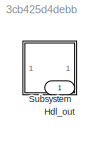
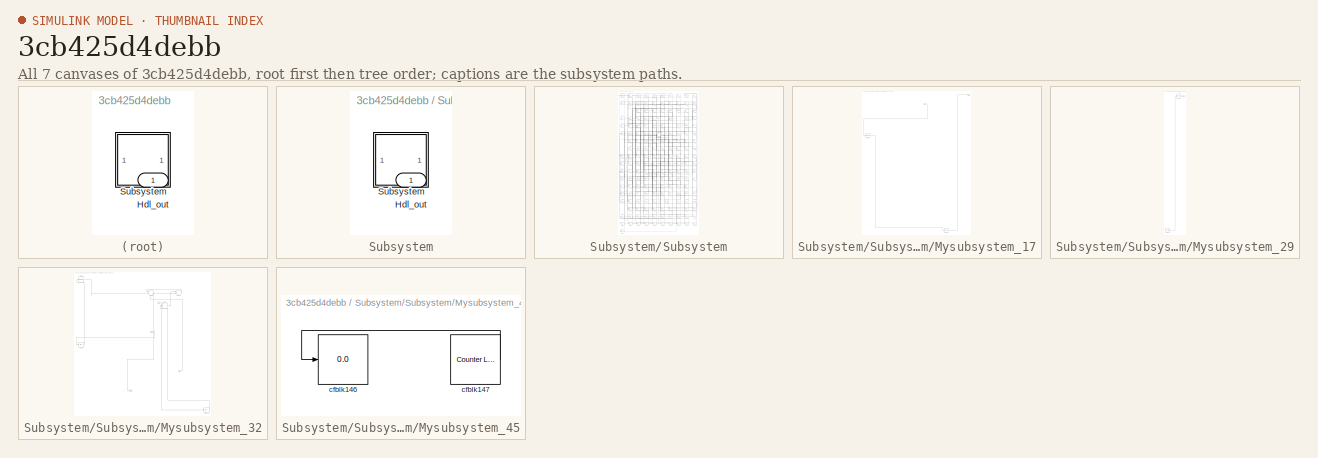
[diagram: thumbnail index - all 7 canvases of the model, root first then tree order]
MODEL slx_3cb425d4debb
KIND model
CONFIG AbsTol = auto
CONFIG EnableMultiTasking = off
CONFIG FixedStep = auto
CONFIG MaxStep = auto
CONFIG MinStep = auto
CONFIG RelTol = 1e-3
CONFIG SampleTimeConstraint = Unconstrained
CONFIG SolverName = VariableStepAuto
CONFIG StartTime = 0.0
CONFIG StopTime = 10.0
BLOCK [Outport] Hdl_out
  OutDataTypeStr = uint8
BLOCK [SubSystem] Subsystem
BLOCK [Outport] Subsystem/Hdl_out
  OutDataTypeStr = uint8
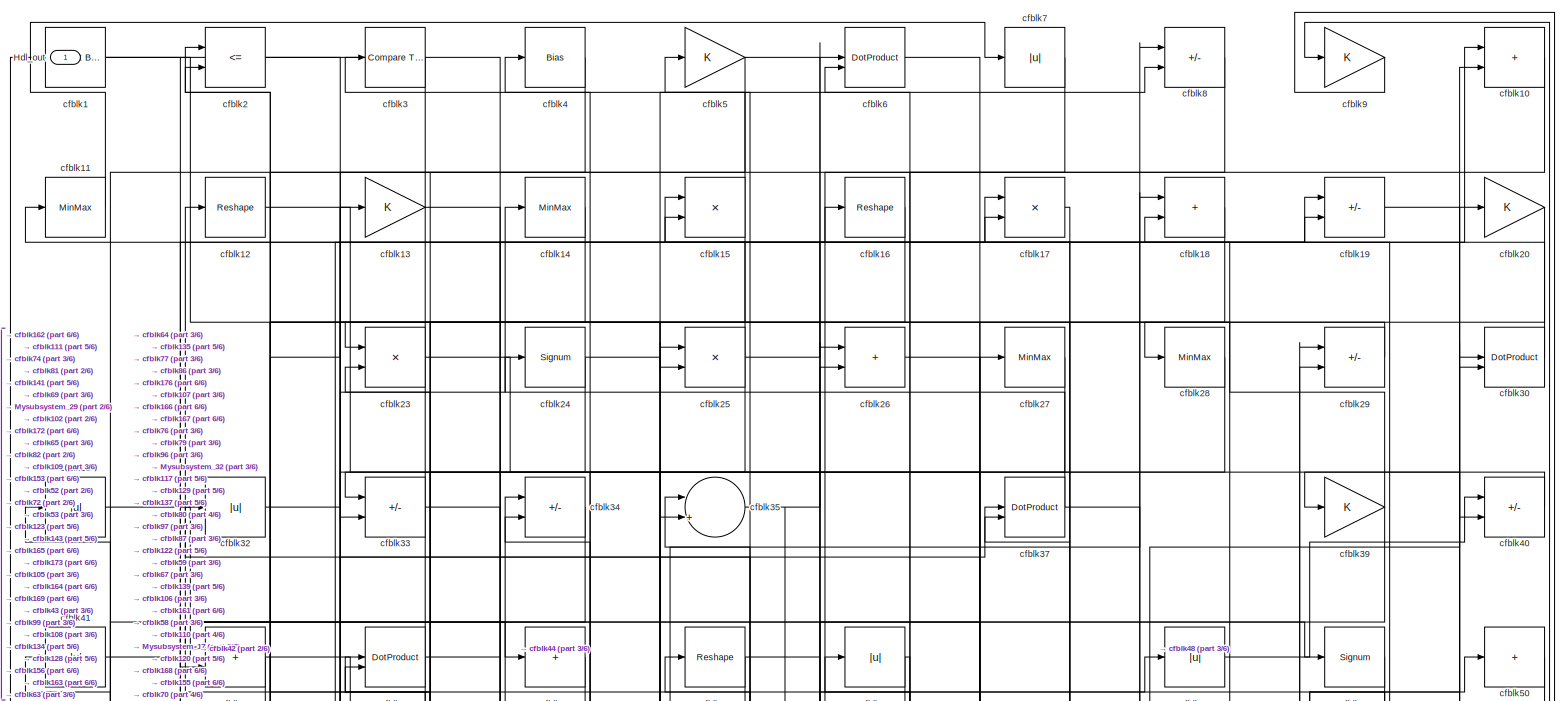
[diagram: Subsystem/Subsystem - part 1/6, full width, top band]
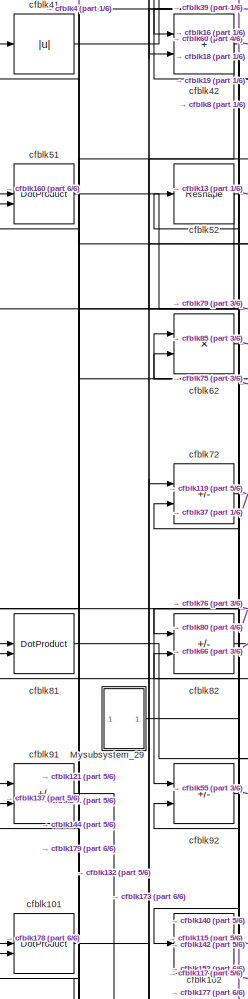
[diagram: Subsystem/Subsystem - part 2/6, middle left region]
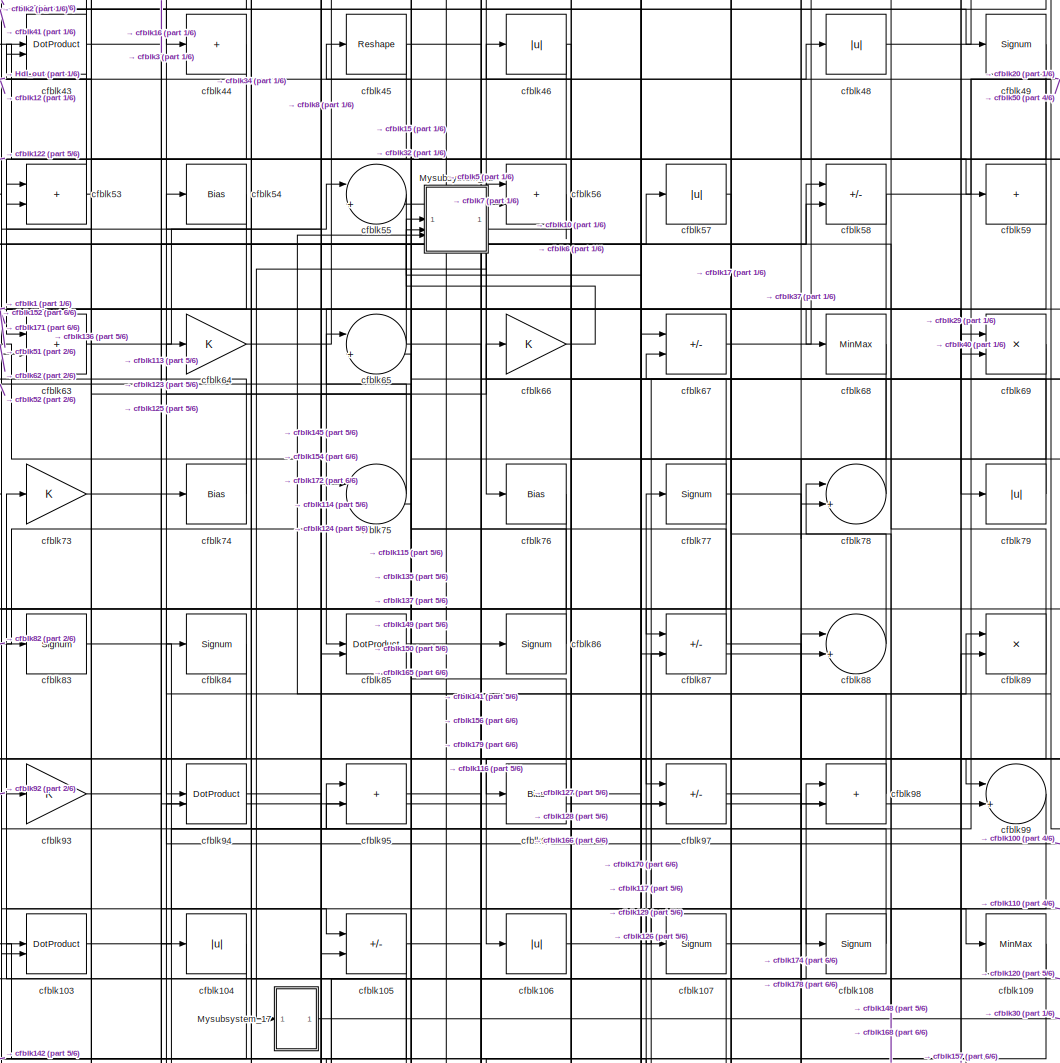
[diagram: Subsystem/Subsystem - part 3/6, central region]
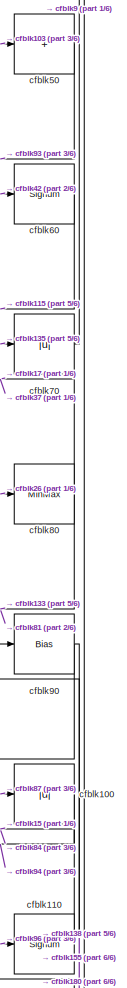
[diagram: Subsystem/Subsystem - part 4/6, middle right region]
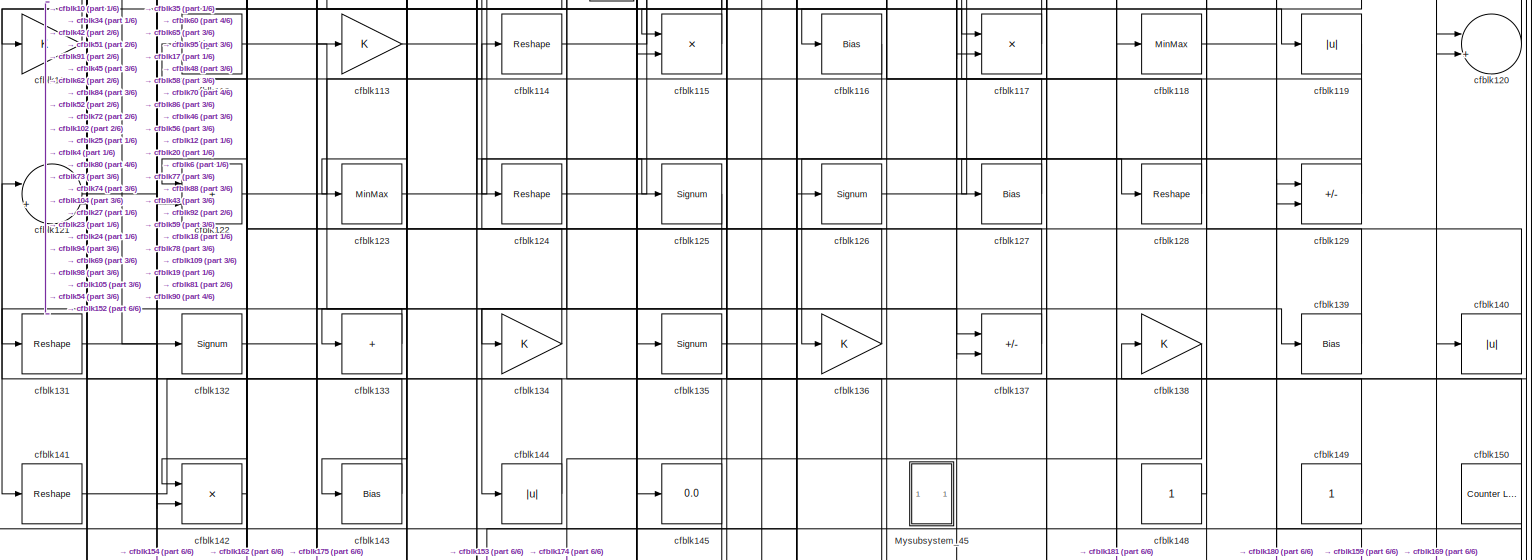
[diagram: Subsystem/Subsystem - part 5/6, full width, bottom band]
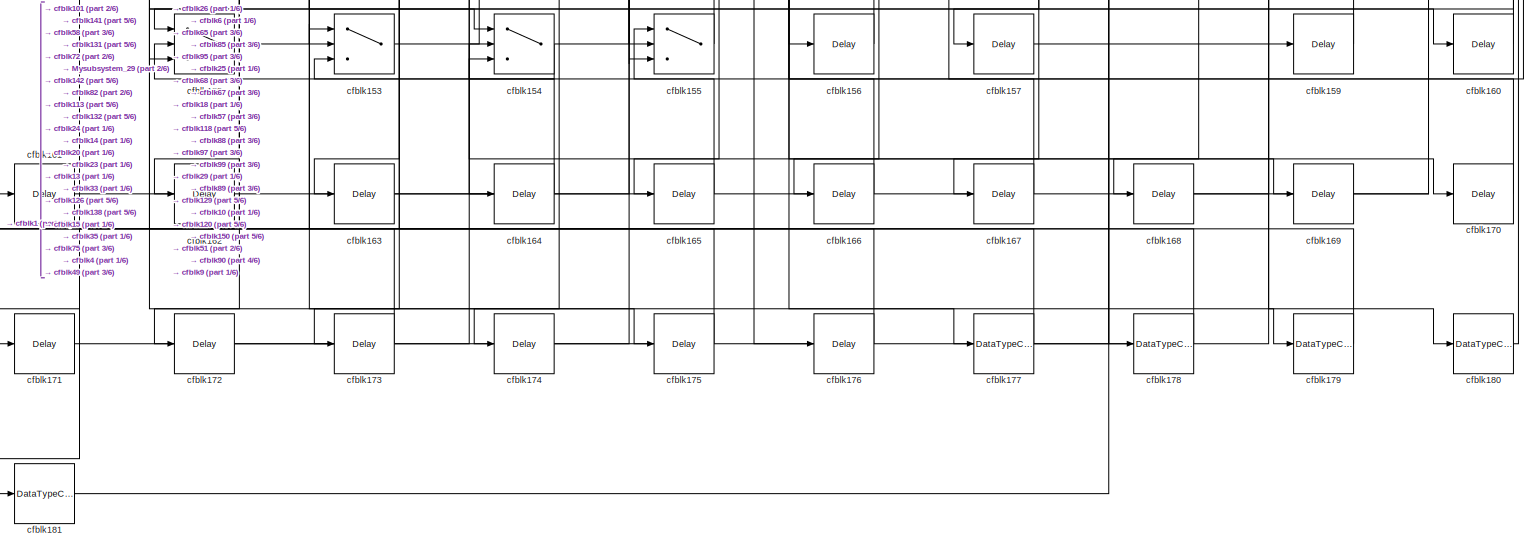
[diagram: Subsystem/Subsystem - part 6/6, full width, bottom band]
BLOCK [SubSystem] Subsystem/Subsystem
BLOCK [Outport] Subsystem/Subsystem/Hdl_out
  OutDataTypeStr = uint8
BLOCK [SubSystem] Subsystem/Subsystem/Mysubsystem_17
  RTWFcnName = Mysubsystem_17
  RTWFcnNameOpts = User specified
  RTWFileNameOpts = Use function name
  RTWSystemCode = Reusable function
  TreatAsAtomicUnit = on
BLOCK [Inport] Subsystem/Subsystem/Mysubsystem_17/In1
BLOCK [Outport] Subsystem/Subsystem/Mysubsystem_17/Out1
BLOCK [Delay] Subsystem/Subsystem/Mysubsystem_17/cfblk158
  InputPortMap = u0
  SampleTime = 1
BLOCK [MinMax] Subsystem/Subsystem/Mysubsystem_17/cfblk61
BLOCK [SubSystem] Subsystem/Subsystem/Mysubsystem_29
  RTWFcnName = Mysubsystem_29
  RTWFcnNameOpts = User specified
  RTWFileNameOpts = Use function name
  RTWSystemCode = Reusable function
  TreatAsAtomicUnit = on
BLOCK [Outport] Subsystem/Subsystem/Mysubsystem_29/Out1
BLOCK [Reference] Subsystem/Subsystem/Mysubsystem_29/cfblk151  REF=hdlsllib/Sources/Counter
Free-Running
  SourceBlock = hdlsllib/Sources/Counter\nFree-Running
  SourceType = Counter Free-Running
BLOCK [Reshape] Subsystem/Subsystem/Mysubsystem_29/cfblk22
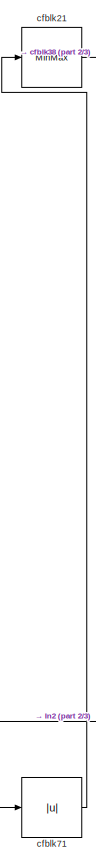
[diagram: Subsystem/Subsystem/Mysubsystem_32 - part 1/3, top left region]
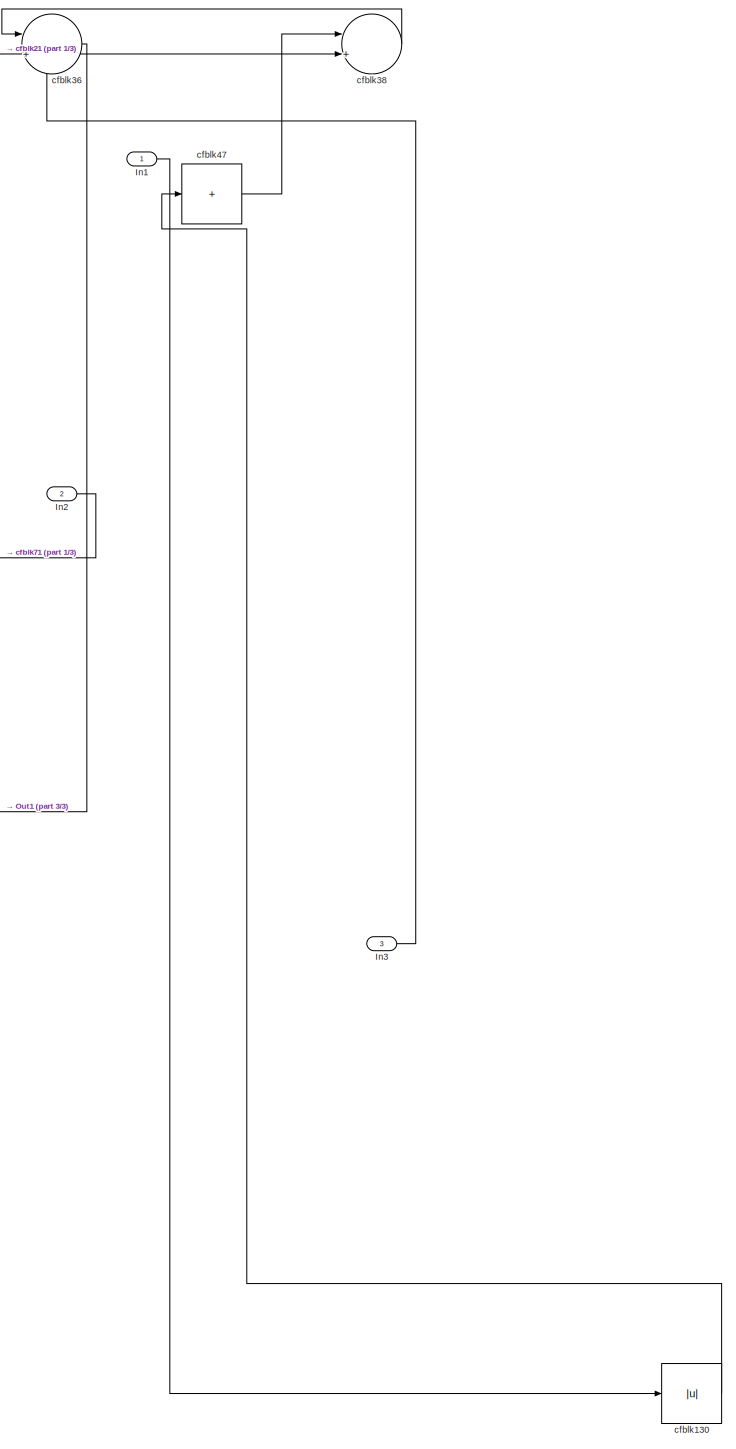
[diagram: Subsystem/Subsystem/Mysubsystem_32 - part 2/3, right side, full height]
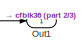
[diagram: Subsystem/Subsystem/Mysubsystem_32 - part 3/3, bottom center region]
BLOCK [SubSystem] Subsystem/Subsystem/Mysubsystem_32
  RTWFcnName = Mysubsystem_32
  RTWFcnNameOpts = User specified
  RTWFileNameOpts = Use function name
  RTWSystemCode = Reusable function
  TreatAsAtomicUnit = on
BLOCK [Inport] Subsystem/Subsystem/Mysubsystem_32/In1
BLOCK [Inport] Subsystem/Subsystem/Mysubsystem_32/In2
  Port = 2
BLOCK [Inport] Subsystem/Subsystem/Mysubsystem_32/In3
  Port = 3
BLOCK [Outport] Subsystem/Subsystem/Mysubsystem_32/Out1
BLOCK [Abs] Subsystem/Subsystem/Mysubsystem_32/cfblk130
  SaturateOnIntegerOverflow = off
BLOCK [MinMax] Subsystem/Subsystem/Mysubsystem_32/cfblk21
BLOCK [Sum] Subsystem/Subsystem/Mysubsystem_32/cfblk36
  Inputs = |++
BLOCK [Sum] Subsystem/Subsystem/Mysubsystem_32/cfblk38
  Inputs = |++
BLOCK [Sum] Subsystem/Subsystem/Mysubsystem_32/cfblk47
  IconShape = rectangular
  Inputs = +
BLOCK [Abs] Subsystem/Subsystem/Mysubsystem_32/cfblk71
  SaturateOnIntegerOverflow = off
BLOCK [SubSystem] Subsystem/Subsystem/Mysubsystem_45
  RTWFcnName = Mysubsystem_45
  RTWFcnNameOpts = User specified
  RTWFileNameOpts = Use function name
  RTWSystemCode = Reusable function
  TreatAsAtomicUnit = on
BLOCK [Display] Subsystem/Subsystem/Mysubsystem_45/cfblk146
  Decimation = 1
BLOCK [Reference] Subsystem/Subsystem/Mysubsystem_45/cfblk147  REF=hdlsllib/Sources/Counter
Limited
  SourceBlock = hdlsllib/Sources/Counter\nLimited
  SourceType = Counter Limited
BLOCK [Reference] Subsystem/Subsystem/cfblk1  REF=simulink/Logic and Bit
Operations/Extract Bits
  LibrarySourceBlock = hdlsllib/Logic and Bit\nOperations/Extract Bits
  SourceBlock = simulink/Logic and Bit\nOperations/Extract Bits
  SourceType = Extract Bits
BLOCK [Sum] Subsystem/Subsystem/cfblk10
  IconShape = rectangular
  OutDataTypeStr = uint8
BLOCK [Abs] Subsystem/Subsystem/cfblk100
  OutDataTypeStr = uint8
  SaturateOnIntegerOverflow = off
BLOCK [DotProduct] Subsystem/Subsystem/cfblk101
  OutDataTypeStr = uint8
BLOCK [Sum] Subsystem/Subsystem/cfblk102
  IconShape = rectangular
  Inputs = +
  OutDataTypeStr = uint8
BLOCK [DotProduct] Subsystem/Subsystem/cfblk103
  OutDataTypeStr = uint8
BLOCK [Abs] Subsystem/Subsystem/cfblk104
  OutDataTypeStr = uint8
  SaturateOnIntegerOverflow = off
BLOCK [Sum] Subsystem/Subsystem/cfblk105
  IconShape = rectangular
  Inputs = +-
  OutDataTypeStr = uint8
BLOCK [Abs] Subsystem/Subsystem/cfblk106
  OutDataTypeStr = uint8
  SaturateOnIntegerOverflow = off
BLOCK [Signum] Subsystem/Subsystem/cfblk107
BLOCK [Signum] Subsystem/Subsystem/cfblk108
BLOCK [MinMax] Subsystem/Subsystem/cfblk109
  OutDataTypeStr = uint8
BLOCK [MinMax] Subsystem/Subsystem/cfblk11
  OutDataTypeStr = uint8
BLOCK [Signum] Subsystem/Subsystem/cfblk110
BLOCK [Gain] Subsystem/Subsystem/cfblk111
  OutDataTypeStr = uint8
BLOCK [Signum] Subsystem/Subsystem/cfblk112
BLOCK [Gain] Subsystem/Subsystem/cfblk113
  OutDataTypeStr = uint8
BLOCK [Reshape] Subsystem/Subsystem/cfblk114
BLOCK [Product] Subsystem/Subsystem/cfblk115
  Inputs = */
  OutDataTypeStr = uint8
  RndMeth = Zero
  SaturateOnIntegerOverflow = on
BLOCK [Bias] Subsystem/Subsystem/cfblk116
  Bias = 0.0
  SaturateOnIntegerOverflow = off
BLOCK [Product] Subsystem/Subsystem/cfblk117
  Inputs = */
  OutDataTypeStr = uint8
  RndMeth = Zero
  SaturateOnIntegerOverflow = on
BLOCK [MinMax] Subsystem/Subsystem/cfblk118
  OutDataTypeStr = uint8
BLOCK [Abs] Subsystem/Subsystem/cfblk119
  OutDataTypeStr = uint8
  SaturateOnIntegerOverflow = off
BLOCK [Reshape] Subsystem/Subsystem/cfblk12
BLOCK [Sum] Subsystem/Subsystem/cfblk120
  Inputs = |++
  OutDataTypeStr = uint8
BLOCK [Sum] Subsystem/Subsystem/cfblk121
  Inputs = |++
  OutDataTypeStr = uint8
BLOCK [Sum] Subsystem/Subsystem/cfblk122
  IconShape = rectangular
  OutDataTypeStr = uint8
BLOCK [MinMax] Subsystem/Subsystem/cfblk123
  OutDataTypeStr = uint8
BLOCK [Reshape] Subsystem/Subsystem/cfblk124
BLOCK [Signum] Subsystem/Subsystem/cfblk125
BLOCK [Signum] Subsystem/Subsystem/cfblk126
BLOCK [Bias] Subsystem/Subsystem/cfblk127
  Bias = 0.0
  SaturateOnIntegerOverflow = off
BLOCK [Reshape] Subsystem/Subsystem/cfblk128
BLOCK [Sum] Subsystem/Subsystem/cfblk129
  IconShape = rectangular
  Inputs = +-
  OutDataTypeStr = uint8
BLOCK [Gain] Subsystem/Subsystem/cfblk13
  OutDataTypeStr = uint8
BLOCK [Reshape] Subsystem/Subsystem/cfblk131
BLOCK [Signum] Subsystem/Subsystem/cfblk132
BLOCK [Sum] Subsystem/Subsystem/cfblk133
  IconShape = rectangular
  Inputs = +
  OutDataTypeStr = uint8
BLOCK [Gain] Subsystem/Subsystem/cfblk134
  OutDataTypeStr = uint8
BLOCK [Signum] Subsystem/Subsystem/cfblk135
BLOCK [Gain] Subsystem/Subsystem/cfblk136
  OutDataTypeStr = uint8
BLOCK [Sum] Subsystem/Subsystem/cfblk137
  IconShape = rectangular
  Inputs = +-
  OutDataTypeStr = uint8
BLOCK [Gain] Subsystem/Subsystem/cfblk138
  OutDataTypeStr = uint8
BLOCK [Bias] Subsystem/Subsystem/cfblk139
  Bias = 0.0
  SaturateOnIntegerOverflow = off
BLOCK [MinMax] Subsystem/Subsystem/cfblk14
  OutDataTypeStr = uint8
BLOCK [Abs] Subsystem/Subsystem/cfblk140
  OutDataTypeStr = uint8
  SaturateOnIntegerOverflow = off
BLOCK [Reshape] Subsystem/Subsystem/cfblk141
BLOCK [Product] Subsystem/Subsystem/cfblk142
  Inputs = */
  OutDataTypeStr = uint8
  RndMeth = Zero
  SaturateOnIntegerOverflow = on
BLOCK [Bias] Subsystem/Subsystem/cfblk143
  Bias = 0.0
  SaturateOnIntegerOverflow = off
BLOCK [Abs] Subsystem/Subsystem/cfblk144
  OutDataTypeStr = uint8
  SaturateOnIntegerOverflow = off
BLOCK [Display] Subsystem/Subsystem/cfblk145
  Decimation = 1
BLOCK [Constant] Subsystem/Subsystem/cfblk148
  OutDataTypeStr = uint8
  SampleTime = -1
BLOCK [Constant] Subsystem/Subsystem/cfblk149
  OutDataTypeStr = uint8
  SampleTime = -1
BLOCK [Product] Subsystem/Subsystem/cfblk15
  Inputs = */
  OutDataTypeStr = uint8
  RndMeth = Zero
  SaturateOnIntegerOverflow = on
BLOCK [Reference] Subsystem/Subsystem/cfblk150  REF=hdlsllib/Sources/Counter
Limited
  SourceBlock = hdlsllib/Sources/Counter\nLimited
  SourceType = Counter Limited
BLOCK [Switch] Subsystem/Subsystem/cfblk152
  InputSameDT = off
  OutDataTypeStr = uint8
  SaturateOnIntegerOverflow = off
BLOCK [Switch] Subsystem/Subsystem/cfblk153
  InputSameDT = off
  OutDataTypeStr = uint8
  SaturateOnIntegerOverflow = off
BLOCK [Switch] Subsystem/Subsystem/cfblk154
  InputSameDT = off
  OutDataTypeStr = uint8
  SaturateOnIntegerOverflow = off
BLOCK [Switch] Subsystem/Subsystem/cfblk155
  InputSameDT = off
  OutDataTypeStr = uint8
  SaturateOnIntegerOverflow = off
BLOCK [Delay] Subsystem/Subsystem/cfblk156
  InputPortMap = u0
  SampleTime = 1
BLOCK [Delay] Subsystem/Subsystem/cfblk157
  InputPortMap = u0
  SampleTime = 1
BLOCK [Delay] Subsystem/Subsystem/cfblk159
  InputPortMap = u0
  SampleTime = 1
BLOCK [Reshape] Subsystem/Subsystem/cfblk16
BLOCK [Delay] Subsystem/Subsystem/cfblk160
  InputPortMap = u0
  SampleTime = 1
BLOCK [Delay] Subsystem/Subsystem/cfblk161
  InputPortMap = u0
  SampleTime = 1
BLOCK [Delay] Subsystem/Subsystem/cfblk162
  InputPortMap = u0
  SampleTime = 1
BLOCK [Delay] Subsystem/Subsystem/cfblk163
  InputPortMap = u0
  SampleTime = 1
BLOCK [Delay] Subsystem/Subsystem/cfblk164
  InputPortMap = u0
  SampleTime = 1
BLOCK [Delay] Subsystem/Subsystem/cfblk165
  InputPortMap = u0
  SampleTime = 1
BLOCK [Delay] Subsystem/Subsystem/cfblk166
  InputPortMap = u0
  SampleTime = 1
BLOCK [Delay] Subsystem/Subsystem/cfblk167
  InputPortMap = u0
  SampleTime = 1
BLOCK [Delay] Subsystem/Subsystem/cfblk168
  InputPortMap = u0
  SampleTime = 1
BLOCK [Delay] Subsystem/Subsystem/cfblk169
  InputPortMap = u0
  SampleTime = 1
BLOCK [Product] Subsystem/Subsystem/cfblk17
  Inputs = */
  OutDataTypeStr = uint8
  RndMeth = Zero
  SaturateOnIntegerOverflow = on
BLOCK [Delay] Subsystem/Subsystem/cfblk170
  InputPortMap = u0
  SampleTime = 1
BLOCK [Delay] Subsystem/Subsystem/cfblk171
  InputPortMap = u0
  SampleTime = 1
BLOCK [Delay] Subsystem/Subsystem/cfblk172
  InputPortMap = u0
  SampleTime = 1
BLOCK [Delay] Subsystem/Subsystem/cfblk173
  InputPortMap = u0
  SampleTime = 1
BLOCK [Delay] Subsystem/Subsystem/cfblk174
  InputPortMap = u0
  SampleTime = 1
BLOCK [Delay] Subsystem/Subsystem/cfblk175
  InputPortMap = u0
  SampleTime = 1
BLOCK [Delay] Subsystem/Subsystem/cfblk176
  InputPortMap = u0
  SampleTime = 1
BLOCK [DataTypeConversion] Subsystem/Subsystem/cfblk177
  OutDataTypeStr = uint8
  RndMeth = Floor
  SaturateOnIntegerOverflow = off
BLOCK [DataTypeConversion] Subsystem/Subsystem/cfblk178
  OutDataTypeStr = uint8
  RndMeth = Floor
  SaturateOnIntegerOverflow = off
BLOCK [DataTypeConversion] Subsystem/Subsystem/cfblk179
  OutDataTypeStr = uint8
  RndMeth = Floor
  SaturateOnIntegerOverflow = off
BLOCK [Sum] Subsystem/Subsystem/cfblk18
  IconShape = rectangular
  OutDataTypeStr = uint8
BLOCK [DataTypeConversion] Subsystem/Subsystem/cfblk180
  OutDataTypeStr = uint8
  RndMeth = Floor
  SaturateOnIntegerOverflow = off
BLOCK [DataTypeConversion] Subsystem/Subsystem/cfblk181
  OutDataTypeStr = uint8
  RndMeth = Floor
  SaturateOnIntegerOverflow = off
BLOCK [Sum] Subsystem/Subsystem/cfblk19
  IconShape = rectangular
  Inputs = +-
  OutDataTypeStr = uint8
BLOCK [RelationalOperator] Subsystem/Subsystem/cfblk2
  InputSameDT = off
  Operator = <=
  OutDataTypeStr = boolean
BLOCK [Gain] Subsystem/Subsystem/cfblk20
  OutDataTypeStr = uint8
BLOCK [Product] Subsystem/Subsystem/cfblk23
  Inputs = */
  OutDataTypeStr = uint8
  RndMeth = Zero
  SaturateOnIntegerOverflow = on
BLOCK [Signum] Subsystem/Subsystem/cfblk24
BLOCK [Product] Subsystem/Subsystem/cfblk25
  Inputs = */
  OutDataTypeStr = uint8
  RndMeth = Zero
  SaturateOnIntegerOverflow = on
BLOCK [Sum] Subsystem/Subsystem/cfblk26
  IconShape = rectangular
  OutDataTypeStr = uint8
BLOCK [MinMax] Subsystem/Subsystem/cfblk27
  OutDataTypeStr = uint8
BLOCK [MinMax] Subsystem/Subsystem/cfblk28
  OutDataTypeStr = uint8
BLOCK [Sum] Subsystem/Subsystem/cfblk29
  IconShape = rectangular
  Inputs = +-
  OutDataTypeStr = uint8
BLOCK [Reference] Subsystem/Subsystem/cfblk3  REF=hdlsllib/Logic and Bit
Operations/Compare
To Zero
  SourceBlock = hdlsllib/Logic and Bit\nOperations/Compare\nTo Zero
  SourceType = Compare To Zero
BLOCK [DotProduct] Subsystem/Subsystem/cfblk30
  OutDataTypeStr = uint8
BLOCK [Abs] Subsystem/Subsystem/cfblk31
  OutDataTypeStr = uint8
  SaturateOnIntegerOverflow = off
BLOCK [Abs] Subsystem/Subsystem/cfblk32
  OutDataTypeStr = uint8
  SaturateOnIntegerOverflow = off
BLOCK [Sum] Subsystem/Subsystem/cfblk33
  IconShape = rectangular
  Inputs = +-
  OutDataTypeStr = uint8
BLOCK [Sum] Subsystem/Subsystem/cfblk34
  IconShape = rectangular
  Inputs = +-
  OutDataTypeStr = uint8
BLOCK [Sum] Subsystem/Subsystem/cfblk35
  Inputs = |++
  OutDataTypeStr = uint8
BLOCK [DotProduct] Subsystem/Subsystem/cfblk37
  OutDataTypeStr = uint8
BLOCK [Gain] Subsystem/Subsystem/cfblk39
  OutDataTypeStr = uint8
BLOCK [Bias] Subsystem/Subsystem/cfblk4
  Bias = 0.0
  SaturateOnIntegerOverflow = off
BLOCK [Sum] Subsystem/Subsystem/cfblk40
  IconShape = rectangular
  Inputs = +-
  OutDataTypeStr = uint8
BLOCK [Abs] Subsystem/Subsystem/cfblk41
  OutDataTypeStr = uint8
  SaturateOnIntegerOverflow = off
BLOCK [Sum] Subsystem/Subsystem/cfblk42
  IconShape = rectangular
  OutDataTypeStr = uint8
BLOCK [DotProduct] Subsystem/Subsystem/cfblk43
  OutDataTypeStr = uint8
BLOCK [Sum] Subsystem/Subsystem/cfblk44
  IconShape = rectangular
  Inputs = +
  OutDataTypeStr = uint8
BLOCK [Reshape] Subsystem/Subsystem/cfblk45
BLOCK [Abs] Subsystem/Subsystem/cfblk46
  OutDataTypeStr = uint8
  SaturateOnIntegerOverflow = off
BLOCK [Abs] Subsystem/Subsystem/cfblk48
  OutDataTypeStr = uint8
  SaturateOnIntegerOverflow = off
BLOCK [Signum] Subsystem/Subsystem/cfblk49
BLOCK [Gain] Subsystem/Subsystem/cfblk5
  OutDataTypeStr = uint8
BLOCK [Sum] Subsystem/Subsystem/cfblk50
  IconShape = rectangular
  Inputs = +
  OutDataTypeStr = uint8
BLOCK [DotProduct] Subsystem/Subsystem/cfblk51
  OutDataTypeStr = uint8
BLOCK [Reshape] Subsystem/Subsystem/cfblk52
BLOCK [Sum] Subsystem/Subsystem/cfblk53
  IconShape = rectangular
  OutDataTypeStr = uint8
BLOCK [Bias] Subsystem/Subsystem/cfblk54
  Bias = 0.0
  SaturateOnIntegerOverflow = off
BLOCK [Sum] Subsystem/Subsystem/cfblk55
  Inputs = |++
  OutDataTypeStr = uint8
BLOCK [Sum] Subsystem/Subsystem/cfblk56
  IconShape = rectangular
  OutDataTypeStr = uint8
BLOCK [Abs] Subsystem/Subsystem/cfblk57
  OutDataTypeStr = uint8
  SaturateOnIntegerOverflow = off
BLOCK [Sum] Subsystem/Subsystem/cfblk58
  IconShape = rectangular
  Inputs = +-
  OutDataTypeStr = uint8
BLOCK [Sum] Subsystem/Subsystem/cfblk59
  IconShape = rectangular
  Inputs = +
  OutDataTypeStr = uint8
BLOCK [DotProduct] Subsystem/Subsystem/cfblk6
  OutDataTypeStr = uint8
BLOCK [Signum] Subsystem/Subsystem/cfblk60
BLOCK [Product] Subsystem/Subsystem/cfblk62
  Inputs = */
  OutDataTypeStr = uint8
  RndMeth = Zero
  SaturateOnIntegerOverflow = on
BLOCK [Sum] Subsystem/Subsystem/cfblk63
  IconShape = rectangular
  OutDataTypeStr = uint8
BLOCK [Gain] Subsystem/Subsystem/cfblk64
  OutDataTypeStr = uint8
BLOCK [Sum] Subsystem/Subsystem/cfblk65
  Inputs = |++
  OutDataTypeStr = uint8
BLOCK [Gain] Subsystem/Subsystem/cfblk66
  OutDataTypeStr = uint8
BLOCK [Sum] Subsystem/Subsystem/cfblk67
  IconShape = rectangular
  Inputs = +-
  OutDataTypeStr = uint8
BLOCK [MinMax] Subsystem/Subsystem/cfblk68
  OutDataTypeStr = uint8
BLOCK [Product] Subsystem/Subsystem/cfblk69
  Inputs = */
  OutDataTypeStr = uint8
  RndMeth = Zero
  SaturateOnIntegerOverflow = on
BLOCK [Abs] Subsystem/Subsystem/cfblk7
  OutDataTypeStr = uint8
  SaturateOnIntegerOverflow = off
BLOCK [Abs] Subsystem/Subsystem/cfblk70
  OutDataTypeStr = uint8
  SaturateOnIntegerOverflow = off
BLOCK [Sum] Subsystem/Subsystem/cfblk72
  IconShape = rectangular
  Inputs = +-
  OutDataTypeStr = uint8
BLOCK [Gain] Subsystem/Subsystem/cfblk73
  OutDataTypeStr = uint8
BLOCK [Bias] Subsystem/Subsystem/cfblk74
  Bias = 0.0
  SaturateOnIntegerOverflow = off
BLOCK [Sum] Subsystem/Subsystem/cfblk75
  Inputs = |++
  OutDataTypeStr = uint8
BLOCK [Bias] Subsystem/Subsystem/cfblk76
  Bias = 0.0
  SaturateOnIntegerOverflow = off
BLOCK [Signum] Subsystem/Subsystem/cfblk77
BLOCK [Sum] Subsystem/Subsystem/cfblk78
  Inputs = |++
  OutDataTypeStr = uint8
BLOCK [Abs] Subsystem/Subsystem/cfblk79
  OutDataTypeStr = uint8
  SaturateOnIntegerOverflow = off
BLOCK [Sum] Subsystem/Subsystem/cfblk8
  IconShape = rectangular
  Inputs = +-
  OutDataTypeStr = uint8
BLOCK [MinMax] Subsystem/Subsystem/cfblk80
  OutDataTypeStr = uint8
BLOCK [DotProduct] Subsystem/Subsystem/cfblk81
  OutDataTypeStr = uint8
BLOCK [Sum] Subsystem/Subsystem/cfblk82
  IconShape = rectangular
  Inputs = +-
  OutDataTypeStr = uint8
BLOCK [Signum] Subsystem/Subsystem/cfblk83
BLOCK [Signum] Subsystem/Subsystem/cfblk84
BLOCK [DotProduct] Subsystem/Subsystem/cfblk85
  OutDataTypeStr = uint8
BLOCK [Signum] Subsystem/Subsystem/cfblk86
BLOCK [Sum] Subsystem/Subsystem/cfblk87
  IconShape = rectangular
  Inputs = +-
  OutDataTypeStr = uint8
BLOCK [Sum] Subsystem/Subsystem/cfblk88
  Inputs = |++
  OutDataTypeStr = uint8
BLOCK [Product] Subsystem/Subsystem/cfblk89
  Inputs = */
  OutDataTypeStr = uint8
  RndMeth = Zero
  SaturateOnIntegerOverflow = on
BLOCK [Gain] Subsystem/Subsystem/cfblk9
  OutDataTypeStr = uint8
BLOCK [Bias] Subsystem/Subsystem/cfblk90
  Bias = 0.0
  SaturateOnIntegerOverflow = off
BLOCK [Sum] Subsystem/Subsystem/cfblk91
  IconShape = rectangular
  Inputs = +-
  OutDataTypeStr = uint8
BLOCK [Sum] Subsystem/Subsystem/cfblk92
  IconShape = rectangular
  Inputs = +-
  OutDataTypeStr = uint8
BLOCK [Gain] Subsystem/Subsystem/cfblk93
  OutDataTypeStr = uint8
BLOCK [DotProduct] Subsystem/Subsystem/cfblk94
  OutDataTypeStr = uint8
BLOCK [Sum] Subsystem/Subsystem/cfblk95
  IconShape = rectangular
  OutDataTypeStr = uint8
BLOCK [Bias] Subsystem/Subsystem/cfblk96
  Bias = 0.0
  SaturateOnIntegerOverflow = off
BLOCK [Sum] Subsystem/Subsystem/cfblk97
  IconShape = rectangular
  Inputs = +-
  OutDataTypeStr = uint8
BLOCK [Sum] Subsystem/Subsystem/cfblk98
  IconShape = rectangular
  OutDataTypeStr = uint8
BLOCK [Sum] Subsystem/Subsystem/cfblk99
  Inputs = |++
  OutDataTypeStr = uint8
LINE Subsystem/Subsystem/Mysubsystem_17/In1:1 -> Subsystem/Subsystem/Mysubsystem_17/cfblk61:1
LINE Subsystem/Subsystem/Mysubsystem_17/cfblk158:1 -> Subsystem/Subsystem/Mysubsystem_17/Out1:1
LINE Subsystem/Subsystem/Mysubsystem_17/cfblk61:1 -> Subsystem/Subsystem/Mysubsystem_17/cfblk158:1
LINE Subsystem/Subsystem/Mysubsystem_17:1 -> Subsystem/Subsystem/cfblk30:2
LINE Subsystem/Subsystem/Mysubsystem_29/cfblk151:1 -> Subsystem/Subsystem/Mysubsystem_29/cfblk22:1
LINE Subsystem/Subsystem/Mysubsystem_29/cfblk22:1 -> Subsystem/Subsystem/Mysubsystem_29/Out1:1
NET Subsystem/Subsystem/Mysubsystem_29:1 -> Subsystem/Subsystem/cfblk152:1, Subsystem/Subsystem/cfblk19:1
LINE Subsystem/Subsystem/Mysubsystem_32/In1:1 -> Subsystem/Subsystem/Mysubsystem_32/cfblk130:1
LINE Subsystem/Subsystem/Mysubsystem_32/In2:1 -> Subsystem/Subsystem/Mysubsystem_32/cfblk71:1
LINE Subsystem/Subsystem/Mysubsystem_32/In3:1 -> Subsystem/Subsystem/Mysubsystem_32/cfblk36:2
LINE Subsystem/Subsystem/Mysubsystem_32/cfblk130:1 -> Subsystem/Subsystem/Mysubsystem_32/cfblk47:1
LINE Subsystem/Subsystem/Mysubsystem_32/cfblk21:1 -> Subsystem/Subsystem/Mysubsystem_32/cfblk38:2
LINE Subsystem/Subsystem/Mysubsystem_32/cfblk36:1 -> Subsystem/Subsystem/Mysubsystem_32/Out1:1
LINE Subsystem/Subsystem/Mysubsystem_32/cfblk38:1 -> Subsystem/Subsystem/Mysubsystem_32/cfblk36:1
LINE Subsystem/Subsystem/Mysubsystem_32/cfblk47:1 -> Subsystem/Subsystem/Mysubsystem_32/cfblk38:1
LINE Subsystem/Subsystem/Mysubsystem_32/cfblk71:1 -> Subsystem/Subsystem/Mysubsystem_32/cfblk21:1
LINE Subsystem/Subsystem/Mysubsystem_32:1 -> Subsystem/Subsystem/Mysubsystem_17:1
LINE Subsystem/Subsystem/Mysubsystem_45/cfblk147:1 -> Subsystem/Subsystem/Mysubsystem_45/cfblk146:1
LINE Subsystem/Subsystem/cfblk100:1 -> Subsystem/Subsystem/cfblk94:2
LINE Subsystem/Subsystem/cfblk101:1 -> Subsystem/Subsystem/cfblk177:1
LINE Subsystem/Subsystem/cfblk102:1 -> Subsystem/Subsystem/cfblk115:2
LINE Subsystem/Subsystem/cfblk103:1 -> Subsystem/Subsystem/cfblk50:1
LINE Subsystem/Subsystem/cfblk104:1 -> Subsystem/Subsystem/cfblk142:1
NET Subsystem/Subsystem/cfblk105:1 -> Subsystem/Subsystem/cfblk117:1, Subsystem/Subsystem/cfblk142:2
LINE Subsystem/Subsystem/cfblk106:1 -> Subsystem/Subsystem/cfblk29:1
LINE Subsystem/Subsystem/cfblk107:1 -> Subsystem/Subsystem/cfblk89:1
LINE Subsystem/Subsystem/cfblk108:1 -> Subsystem/Subsystem/cfblk34:2
LINE Subsystem/Subsystem/cfblk109:1 -> Subsystem/Subsystem/cfblk141:1
LINE Subsystem/Subsystem/cfblk10:1 -> Subsystem/Subsystem/cfblk96:1
NET Subsystem/Subsystem/cfblk110:1 -> Subsystem/Subsystem/cfblk15:2, Subsystem/Subsystem/cfblk84:1
LINE Subsystem/Subsystem/cfblk111:1 -> Subsystem/Subsystem/cfblk10:1
LINE Subsystem/Subsystem/cfblk112:1 -> Subsystem/Subsystem/cfblk139:1
LINE Subsystem/Subsystem/cfblk113:1 -> Subsystem/Subsystem/cfblk74:1
LINE Subsystem/Subsystem/cfblk114:1 -> Subsystem/Subsystem/cfblk98:1
LINE Subsystem/Subsystem/cfblk115:1 -> Subsystem/Subsystem/cfblk54:1
LINE Subsystem/Subsystem/cfblk116:1 -> Subsystem/Subsystem/cfblk124:1
NET Subsystem/Subsystem/cfblk117:1 -> Subsystem/Subsystem/cfblk43:2, Subsystem/Subsystem/cfblk92:2
LINE Subsystem/Subsystem/cfblk118:1 -> Subsystem/Subsystem/cfblk180:1
LINE Subsystem/Subsystem/cfblk119:1 -> Subsystem/Subsystem/cfblk136:1
LINE Subsystem/Subsystem/cfblk11:1 -> Subsystem/Subsystem/cfblk7:1
LINE Subsystem/Subsystem/cfblk120:1 -> Subsystem/Subsystem/cfblk73:1
LINE Subsystem/Subsystem/cfblk121:1 -> Subsystem/Subsystem/cfblk114:1
LINE Subsystem/Subsystem/cfblk122:1 -> Subsystem/Subsystem/cfblk18:1
NET Subsystem/Subsystem/cfblk123:1 -> Subsystem/Subsystem/cfblk27:1, Subsystem/Subsystem/cfblk58:2
LINE Subsystem/Subsystem/cfblk124:1 -> Subsystem/Subsystem/cfblk69:1
LINE Subsystem/Subsystem/cfblk125:1 -> Subsystem/Subsystem/cfblk144:1
LINE Subsystem/Subsystem/cfblk126:1 -> Subsystem/Subsystem/cfblk88:2
LINE Subsystem/Subsystem/cfblk127:1 -> Subsystem/Subsystem/cfblk46:1
LINE Subsystem/Subsystem/cfblk128:1 -> Subsystem/Subsystem/cfblk56:2
LINE Subsystem/Subsystem/cfblk129:1 -> Subsystem/Subsystem/cfblk77:1
NET Subsystem/Subsystem/cfblk12:1 -> Subsystem/Subsystem/cfblk137:1, Subsystem/Subsystem/cfblk87:2
LINE Subsystem/Subsystem/cfblk131:1 -> Subsystem/Subsystem/cfblk154:1
LINE Subsystem/Subsystem/cfblk132:1 -> Subsystem/Subsystem/cfblk175:1
LINE Subsystem/Subsystem/cfblk133:1 -> Subsystem/Subsystem/cfblk131:1
LINE Subsystem/Subsystem/cfblk134:1 -> Subsystem/Subsystem/cfblk112:1
NET Subsystem/Subsystem/cfblk135:1 -> Subsystem/Subsystem/cfblk35:1, Subsystem/Subsystem/cfblk48:1, Subsystem/Subsystem/cfblk70:1
LINE Subsystem/Subsystem/cfblk136:1 -> Subsystem/Subsystem/cfblk43:1
NET Subsystem/Subsystem/cfblk137:1 -> Subsystem/Subsystem/cfblk34:1, Subsystem/Subsystem/cfblk65:2
LINE Subsystem/Subsystem/cfblk138:1 -> Subsystem/Subsystem/cfblk174:1
LINE Subsystem/Subsystem/cfblk139:1 -> Subsystem/Subsystem/cfblk18:2
LINE Subsystem/Subsystem/cfblk13:1 -> Subsystem/Subsystem/cfblk164:1
LINE Subsystem/Subsystem/cfblk140:1 -> Subsystem/Subsystem/cfblk62:1
NET Subsystem/Subsystem/cfblk141:1 -> Subsystem/Subsystem/cfblk17:2, Subsystem/Subsystem/cfblk181:1, Subsystem/Subsystem/cfblk58:1, Subsystem/Subsystem/cfblk86:1, Subsystem/Subsystem/cfblk91:1
NET Subsystem/Subsystem/cfblk142:1 -> Subsystem/Subsystem/cfblk162:1, Subsystem/Subsystem/cfblk62:2
LINE Subsystem/Subsystem/cfblk143:1 -> Subsystem/Subsystem/cfblk121:1
LINE Subsystem/Subsystem/cfblk144:1 -> Subsystem/Subsystem/cfblk51:2
LINE Subsystem/Subsystem/cfblk148:1 -> Subsystem/Subsystem/cfblk78:1
LINE Subsystem/Subsystem/cfblk149:1 -> Subsystem/Subsystem/cfblk65:1
LINE Subsystem/Subsystem/cfblk14:1 -> Subsystem/Subsystem/cfblk163:1
NET Subsystem/Subsystem/cfblk150:1 -> Subsystem/Subsystem/cfblk152:3, Subsystem/Subsystem/cfblk95:1
NET Subsystem/Subsystem/cfblk152:1 -> Subsystem/Subsystem/cfblk113:1, Subsystem/Subsystem/cfblk72:2, Subsystem/Subsystem/cfblk95:2
LINE Subsystem/Subsystem/cfblk153:1 -> Subsystem/Subsystem/cfblk126:1
NET Subsystem/Subsystem/cfblk154:1 -> Subsystem/Subsystem/cfblk152:2, Subsystem/Subsystem/cfblk57:1
LINE Subsystem/Subsystem/cfblk155:1 -> Subsystem/Subsystem/cfblk4:1
LINE Subsystem/Subsystem/cfblk156:1 -> Subsystem/Subsystem/cfblk25:1
LINE Subsystem/Subsystem/cfblk157:1 -> Subsystem/Subsystem/cfblk89:2
LINE Subsystem/Subsystem/cfblk159:1 -> Subsystem/Subsystem/cfblk129:1
NET Subsystem/Subsystem/cfblk15:1 -> Subsystem/Subsystem/cfblk155:2, Subsystem/Subsystem/cfblk33:2, Subsystem/Subsystem/cfblk3:1
LINE Subsystem/Subsystem/cfblk160:1 -> Subsystem/Subsystem/cfblk51:1
LINE Subsystem/Subsystem/cfblk161:1 -> Subsystem/Subsystem/cfblk29:2
LINE Subsystem/Subsystem/cfblk162:1 -> Subsystem/Subsystem/cfblk1:1
LINE Subsystem/Subsystem/cfblk163:1 -> Subsystem/Subsystem/cfblk35:2
LINE Subsystem/Subsystem/cfblk164:1 -> Subsystem/Subsystem/cfblk154:2
LINE Subsystem/Subsystem/cfblk165:1 -> Subsystem/Subsystem/cfblk23:2
LINE Subsystem/Subsystem/cfblk166:1 -> Subsystem/Subsystem/cfblk6:1
LINE Subsystem/Subsystem/cfblk167:1 -> Subsystem/Subsystem/cfblk26:1
LINE Subsystem/Subsystem/cfblk168:1 -> Subsystem/Subsystem/cfblk10:2
LINE Subsystem/Subsystem/cfblk169:1 -> Subsystem/Subsystem/cfblk120:2
LINE Subsystem/Subsystem/cfblk16:1 -> Subsystem/Subsystem/cfblk102:1
LINE Subsystem/Subsystem/cfblk170:1 -> Subsystem/Subsystem/cfblk67:1
LINE Subsystem/Subsystem/cfblk171:1 -> Subsystem/Subsystem/cfblk154:3
LINE Subsystem/Subsystem/cfblk172:1 -> Subsystem/Subsystem/cfblk75:1
LINE Subsystem/Subsystem/cfblk173:1 -> Subsystem/Subsystem/cfblk72:1
LINE Subsystem/Subsystem/cfblk174:1 -> Subsystem/Subsystem/cfblk88:1
LINE Subsystem/Subsystem/cfblk175:1 -> Subsystem/Subsystem/cfblk153:1
LINE Subsystem/Subsystem/cfblk176:1 -> Subsystem/Subsystem/cfblk153:3
NET Subsystem/Subsystem/cfblk177:1 -> Subsystem/Subsystem/cfblk159:1, Subsystem/Subsystem/cfblk161:1, Subsystem/Subsystem/cfblk82:2
LINE Subsystem/Subsystem/cfblk178:1 -> Subsystem/Subsystem/cfblk101:1
LINE Subsystem/Subsystem/cfblk179:1 -> Subsystem/Subsystem/cfblk101:2
LINE Subsystem/Subsystem/cfblk17:1 -> Subsystem/Subsystem/cfblk87:1
LINE Subsystem/Subsystem/cfblk180:1 -> Subsystem/Subsystem/cfblk90:1
LINE Subsystem/Subsystem/cfblk181:1 -> Subsystem/Subsystem/cfblk118:1
NET Subsystem/Subsystem/cfblk18:1 -> Subsystem/Subsystem/cfblk167:1, Subsystem/Subsystem/cfblk82:1
LINE Subsystem/Subsystem/cfblk19:1 -> Subsystem/Subsystem/cfblk120:1
NET Subsystem/Subsystem/cfblk1:1 -> Subsystem/Subsystem/cfblk25:2, Subsystem/Subsystem/cfblk69:2
NET Subsystem/Subsystem/cfblk20:1 -> Subsystem/Subsystem/cfblk117:2, Subsystem/Subsystem/cfblk172:1, Subsystem/Subsystem/cfblk173:1
LINE Subsystem/Subsystem/cfblk23:1 -> Subsystem/Subsystem/cfblk135:1
NET Subsystem/Subsystem/cfblk24:1 -> Subsystem/Subsystem/cfblk128:1, Subsystem/Subsystem/cfblk153:2, Subsystem/Subsystem/cfblk40:2
NET Subsystem/Subsystem/cfblk25:1 -> Subsystem/Subsystem/cfblk11:1, Subsystem/Subsystem/cfblk123:1, Subsystem/Subsystem/cfblk19:2
LINE Subsystem/Subsystem/cfblk26:1 -> Subsystem/Subsystem/cfblk80:1
LINE Subsystem/Subsystem/cfblk27:1 -> Subsystem/Subsystem/cfblk134:1
LINE Subsystem/Subsystem/cfblk28:1 -> Subsystem/Subsystem/cfblk33:1
LINE Subsystem/Subsystem/cfblk29:1 -> Subsystem/Subsystem/cfblk23:1
LINE Subsystem/Subsystem/cfblk2:1 -> Subsystem/Subsystem/cfblk109:1
LINE Subsystem/Subsystem/cfblk30:1 -> Subsystem/Subsystem/cfblk5:1
NET Subsystem/Subsystem/cfblk31:1 -> Subsystem/Subsystem/Mysubsystem_32:1, Subsystem/Subsystem/cfblk97:2
LINE Subsystem/Subsystem/cfblk32:1 -> Subsystem/Subsystem/cfblk24:1
LINE Subsystem/Subsystem/cfblk33:1 -> Subsystem/Subsystem/cfblk169:1
LINE Subsystem/Subsystem/cfblk34:1 -> Subsystem/Subsystem/cfblk111:1
NET Subsystem/Subsystem/cfblk35:1 -> Subsystem/Subsystem/cfblk176:1, Subsystem/Subsystem/cfblk26:2
NET Subsystem/Subsystem/cfblk37:1 -> Subsystem/Subsystem/cfblk14:1, Subsystem/Subsystem/cfblk59:1
NET Subsystem/Subsystem/cfblk39:1 -> Subsystem/Subsystem/cfblk28:1, Subsystem/Subsystem/cfblk42:2
NET Subsystem/Subsystem/cfblk3:1 -> Subsystem/Subsystem/cfblk105:2, Subsystem/Subsystem/cfblk99:2
LINE Subsystem/Subsystem/cfblk40:1 -> Subsystem/Subsystem/cfblk39:1
LINE Subsystem/Subsystem/cfblk41:1 -> Subsystem/Subsystem/cfblk44:1
NET Subsystem/Subsystem/cfblk42:1 -> Subsystem/Subsystem/cfblk121:2, Subsystem/Subsystem/cfblk60:1
NET Subsystem/Subsystem/cfblk43:1 -> Subsystem/Subsystem/cfblk104:1, Subsystem/Subsystem/cfblk16:1
LINE Subsystem/Subsystem/cfblk44:1 -> Subsystem/Subsystem/cfblk103:1
NET Subsystem/Subsystem/cfblk45:1 -> Subsystem/Subsystem/cfblk122:2, Subsystem/Subsystem/cfblk49:1, Subsystem/Subsystem/cfblk68:1
NET Subsystem/Subsystem/cfblk46:1 -> Subsystem/Subsystem/cfblk116:1, Subsystem/Subsystem/cfblk63:1
LINE Subsystem/Subsystem/cfblk48:1 -> Subsystem/Subsystem/cfblk40:1
LINE Subsystem/Subsystem/cfblk49:1 -> Subsystem/Subsystem/cfblk165:1
NET Subsystem/Subsystem/cfblk4:1 -> Subsystem/Subsystem/cfblk143:1, Subsystem/Subsystem/cfblk81:1
LINE Subsystem/Subsystem/cfblk50:1 -> Subsystem/Subsystem/cfblk93:1
LINE Subsystem/Subsystem/cfblk51:1 -> Subsystem/Subsystem/cfblk79:1
NET Subsystem/Subsystem/cfblk52:1 -> Subsystem/Subsystem/cfblk137:2, Subsystem/Subsystem/cfblk13:1, Subsystem/Subsystem/cfblk91:2
NET Subsystem/Subsystem/cfblk53:1 -> Subsystem/Subsystem/Hdl_out:1, Subsystem/Subsystem/cfblk12:1, Subsystem/Subsystem/cfblk83:1
LINE Subsystem/Subsystem/cfblk54:1 -> Subsystem/Subsystem/cfblk103:2
LINE Subsystem/Subsystem/cfblk55:1 -> Subsystem/Subsystem/cfblk85:1
LINE Subsystem/Subsystem/cfblk56:1 -> Subsystem/Subsystem/cfblk55:2
LINE Subsystem/Subsystem/cfblk57:1 -> Subsystem/Subsystem/cfblk157:1
NET Subsystem/Subsystem/cfblk58:1 -> Subsystem/Subsystem/cfblk171:1, Subsystem/Subsystem/cfblk20:1
NET Subsystem/Subsystem/cfblk59:1 -> Subsystem/Subsystem/cfblk127:1, Subsystem/Subsystem/cfblk2:2
NET Subsystem/Subsystem/cfblk5:1 -> Subsystem/Subsystem/cfblk107:1, Subsystem/Subsystem/cfblk63:2
LINE Subsystem/Subsystem/cfblk60:1 -> Subsystem/Subsystem/cfblk115:1
LINE Subsystem/Subsystem/cfblk62:1 -> Subsystem/Subsystem/cfblk85:2
LINE Subsystem/Subsystem/cfblk63:1 -> Subsystem/Subsystem/cfblk8:2
LINE Subsystem/Subsystem/cfblk64:1 -> Subsystem/Subsystem/cfblk8:1
NET Subsystem/Subsystem/cfblk65:1 -> Subsystem/Subsystem/cfblk170:1, Subsystem/Subsystem/cfblk2:1, Subsystem/Subsystem/cfblk41:1
LINE Subsystem/Subsystem/cfblk66:1 -> Subsystem/Subsystem/Mysubsystem_32:2
LINE Subsystem/Subsystem/cfblk67:1 -> Subsystem/Subsystem/cfblk30:1
NET Subsystem/Subsystem/cfblk68:1 -> Subsystem/Subsystem/cfblk166:1, Subsystem/Subsystem/cfblk98:2
LINE Subsystem/Subsystem/cfblk69:1 -> Subsystem/Subsystem/cfblk75:2
LINE Subsystem/Subsystem/cfblk6:1 -> Subsystem/Subsystem/cfblk129:2
LINE Subsystem/Subsystem/cfblk70:1 -> Subsystem/Subsystem/cfblk9:1
NET Subsystem/Subsystem/cfblk72:1 -> Subsystem/Subsystem/cfblk119:1, Subsystem/Subsystem/cfblk37:1
LINE Subsystem/Subsystem/cfblk73:1 -> Subsystem/Subsystem/cfblk125:1
LINE Subsystem/Subsystem/cfblk74:1 -> Subsystem/Subsystem/cfblk31:1
NET Subsystem/Subsystem/cfblk75:1 -> Subsystem/Subsystem/cfblk52:1, Subsystem/Subsystem/cfblk53:1
LINE Subsystem/Subsystem/cfblk76:1 -> Subsystem/Subsystem/cfblk92:1
NET Subsystem/Subsystem/cfblk77:1 -> Subsystem/Subsystem/cfblk32:1, Subsystem/Subsystem/cfblk78:2, Subsystem/Subsystem/cfblk94:1
LINE Subsystem/Subsystem/cfblk78:1 -> Subsystem/Subsystem/cfblk56:1
LINE Subsystem/Subsystem/cfblk79:1 -> Subsystem/Subsystem/cfblk6:2
LINE Subsystem/Subsystem/cfblk7:1 -> Subsystem/Subsystem/cfblk76:1
NET Subsystem/Subsystem/cfblk80:1 -> Subsystem/Subsystem/cfblk133:1, Subsystem/Subsystem/cfblk17:1, Subsystem/Subsystem/cfblk37:2, Subsystem/Subsystem/cfblk81:2
LINE Subsystem/Subsystem/cfblk81:1 -> Subsystem/Subsystem/cfblk140:1
NET Subsystem/Subsystem/cfblk82:1 -> Subsystem/Subsystem/cfblk160:1, Subsystem/Subsystem/cfblk66:1
LINE Subsystem/Subsystem/cfblk83:1 -> Subsystem/Subsystem/cfblk105:1
LINE Subsystem/Subsystem/cfblk84:1 -> Subsystem/Subsystem/cfblk122:1
LINE Subsystem/Subsystem/cfblk85:1 -> Subsystem/Subsystem/cfblk156:1
LINE Subsystem/Subsystem/cfblk86:1 -> Subsystem/Subsystem/cfblk15:1
NET Subsystem/Subsystem/cfblk87:1 -> Subsystem/Subsystem/cfblk100:1, Subsystem/Subsystem/cfblk64:1, Subsystem/Subsystem/cfblk99:1
LINE Subsystem/Subsystem/cfblk88:1 -> Subsystem/Subsystem/cfblk67:2
NET Subsystem/Subsystem/cfblk89:1 -> Subsystem/Subsystem/cfblk106:1, Subsystem/Subsystem/cfblk53:2
LINE Subsystem/Subsystem/cfblk8:1 -> Subsystem/Subsystem/cfblk42:1
NET Subsystem/Subsystem/cfblk90:1 -> Subsystem/Subsystem/cfblk138:1, Subsystem/Subsystem/cfblk155:3
LINE Subsystem/Subsystem/cfblk91:1 -> Subsystem/Subsystem/cfblk132:1
LINE Subsystem/Subsystem/cfblk92:1 -> Subsystem/Subsystem/cfblk55:1
LINE Subsystem/Subsystem/cfblk93:1 -> Subsystem/Subsystem/cfblk97:1
LINE Subsystem/Subsystem/cfblk94:1 -> Subsystem/Subsystem/cfblk145:1
NET Subsystem/Subsystem/cfblk95:1 -> Subsystem/Subsystem/cfblk108:1, Subsystem/Subsystem/cfblk179:1
NET Subsystem/Subsystem/cfblk96:1 -> Subsystem/Subsystem/cfblk110:1, Subsystem/Subsystem/cfblk45:1
LINE Subsystem/Subsystem/cfblk97:1 -> Subsystem/Subsystem/cfblk178:1
LINE Subsystem/Subsystem/cfblk98:1 -> Subsystem/Subsystem/Mysubsystem_32:3
LINE Subsystem/Subsystem/cfblk99:1 -> Subsystem/Subsystem/cfblk168:1
LINE Subsystem/Subsystem/cfblk9:1 -> Subsystem/Subsystem/cfblk155:1
note: NET lines group one-source signal fan-out (src -> all destinations, sorted); 1:1 wires keep LINE
